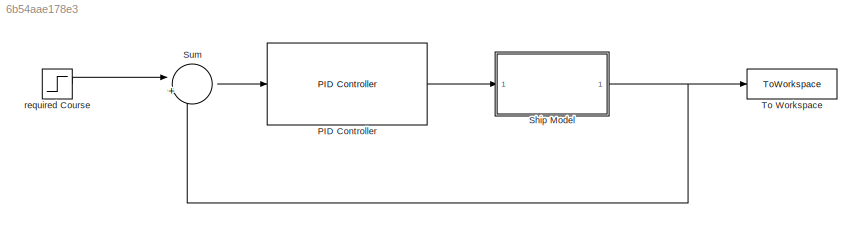
MODEL slx_6b54aae178e3
KIND model
CONFIG AbsTol = auto
CONFIG EnableMultiTasking = off
CONFIG FixedStep = auto
CONFIG MaxStep = auto
CONFIG MinStep = auto
CONFIG RelTol = 1e-3
CONFIG SampleTimeConstraint = Unconstrained
CONFIG SolverName = VariableStepAuto
CONFIG StartTime = 0.0
CONFIG StopTime = 2000
BLOCK [Reference] PID Controller  REF=pid_lib/PID Controller
  Ports = [1, 1]
  SourceBlock = pid_lib/PID Controller
  SourceProductBaseCode = SL
  SourceType = PID 1dof
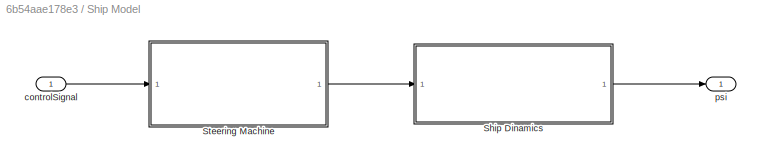
BLOCK [SubSystem] Ship Model
  Ports = [1, 1]
  RequestExecContextInheritance = off
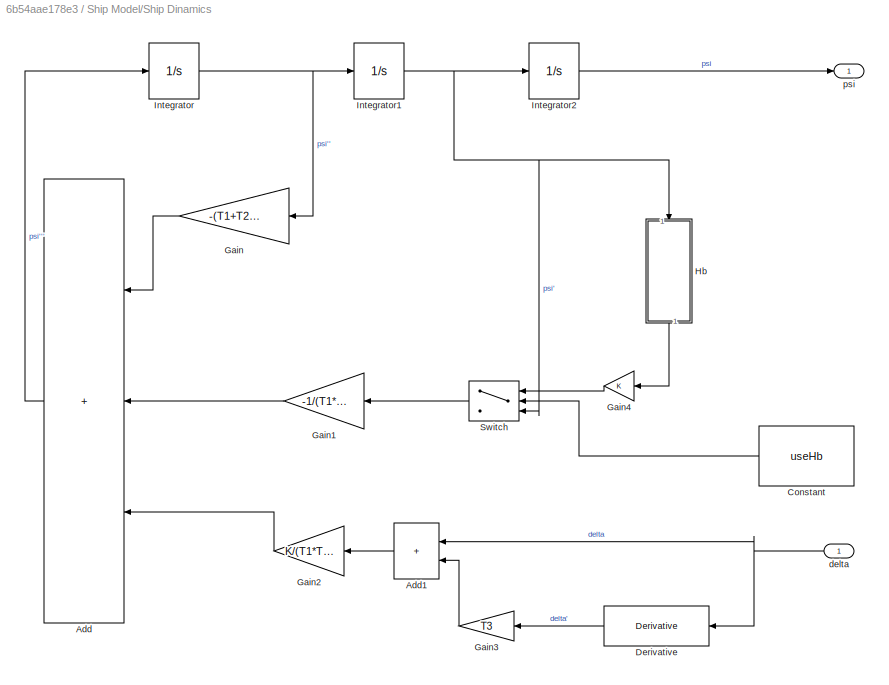
BLOCK [SubSystem] Ship Model/Ship Dinamics
  Ports = [1, 1]
  RequestExecContextInheritance = off
BLOCK [Sum] Ship Model/Ship Dinamics/Add
  IconShape = rectangular
  Inputs = +++
  NameLocation = top
  Ports = [3, 1]
BLOCK [Sum] Ship Model/Ship Dinamics/Add1
  IconShape = rectangular
  NameLocation = top
  Ports = [2, 1]
BLOCK [Constant] Ship Model/Ship Dinamics/Constant
  NameLocation = top
  Value = useHb
BLOCK [Derivative] Ship Model/Ship Dinamics/Derivative
  NameLocation = top
BLOCK [Gain] Ship Model/Ship Dinamics/Gain
  Gain = -(T1+T2)/(T1*T2)
  NameLocation = top
BLOCK [Gain] Ship Model/Ship Dinamics/Gain1
  Gain = -1/(T1*T2)
  NameLocation = top
BLOCK [Gain] Ship Model/Ship Dinamics/Gain2
  Gain = K/(T1*T2)
  NameLocation = top
BLOCK [Gain] Ship Model/Ship Dinamics/Gain3
  Gain = T3
  NameLocation = top
BLOCK [Gain] Ship Model/Ship Dinamics/Gain4
  Gain = K
  NameLocation = top
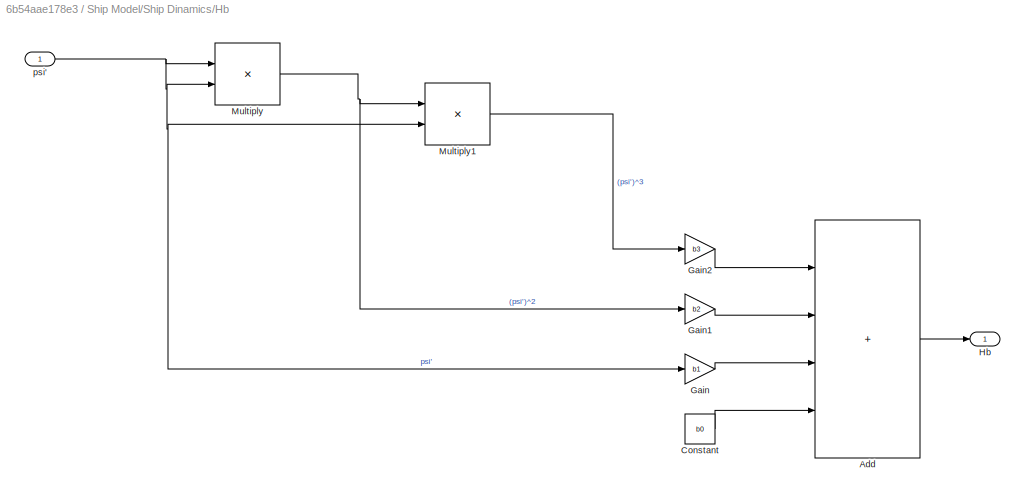
BLOCK [SubSystem] Ship Model/Ship Dinamics/Hb
  NameLocation = left
  Ports = [1, 1]
  RequestExecContextInheritance = off
BLOCK [Sum] Ship Model/Ship Dinamics/Hb/Add
  IconShape = rectangular
  Inputs = ++++
  Ports = [4, 1]
BLOCK [Constant] Ship Model/Ship Dinamics/Hb/Constant
  Value = b0
BLOCK [Gain] Ship Model/Ship Dinamics/Hb/Gain
  Gain = b1
BLOCK [Gain] Ship Model/Ship Dinamics/Hb/Gain1
  Gain = b2
BLOCK [Gain] Ship Model/Ship Dinamics/Hb/Gain2
  Gain = b3
BLOCK [Outport] Ship Model/Ship Dinamics/Hb/Hb
BLOCK [Product] Ship Model/Ship Dinamics/Hb/Multiply
  Inputs = **
  Ports = [2, 1]
BLOCK [Product] Ship Model/Ship Dinamics/Hb/Multiply1
  Inputs = **
  Ports = [2, 1]
BLOCK [Inport] Ship Model/Ship Dinamics/Hb/psi'
BLOCK [Integrator] Ship Model/Ship Dinamics/Integrator
  Ports = [1, 1]
BLOCK [Integrator] Ship Model/Ship Dinamics/Integrator1
  Ports = [1, 1]
BLOCK [Integrator] Ship Model/Ship Dinamics/Integrator2
  Ports = [1, 1]
BLOCK [Switch] Ship Model/Ship Dinamics/Switch
  Criteria = u2 > Threshold
  InputSameDT = off
  NameLocation = top
  SaturateOnIntegerOverflow = off
BLOCK [Inport] Ship Model/Ship Dinamics/delta
BLOCK [Outport] Ship Model/Ship Dinamics/psi
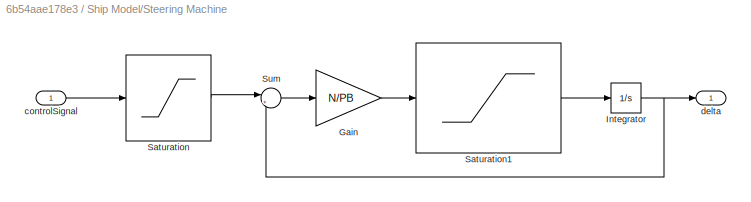
BLOCK [SubSystem] Ship Model/Steering Machine
  Ports = [1, 1]
  RequestExecContextInheritance = off
BLOCK [Gain] Ship Model/Steering Machine/Gain
  Gain = N/PB
BLOCK [Integrator] Ship Model/Steering Machine/Integrator
  Ports = [1, 1]
BLOCK [Saturate] Ship Model/Steering Machine/Saturation
  LowerLimit = -deltaMax
  UpperLimit = deltaMax
BLOCK [Saturate] Ship Model/Steering Machine/Saturation1
  LowerLimit = -N
  UpperLimit = N
BLOCK [Sum] Ship Model/Steering Machine/Sum
  Inputs = |+-
  Ports = [2, 1]
BLOCK [Inport] Ship Model/Steering Machine/controlSignal
BLOCK [Outport] Ship Model/Steering Machine/delta
BLOCK [Inport] Ship Model/controlSignal
BLOCK [Outport] Ship Model/psi
BLOCK [Sum] Sum
  Inputs = |+-
  Ports = [2, 1]
BLOCK [ToWorkspace] To Workspace
  FixptAsFi = on
  MaxDataPoints = inf
  Ports = [1]
  SampleTime = -1
  Save2DSignal = 2-D array (concatenate along first dimension)
  VariableName = psi
BLOCK [Step] required Course
  After = requiredPsi
  SampleTime = 0
  Time = stepTime
LINE PID Controller:1 -> Ship Model:1
LINE Ship Model/Ship Dinamics/Add1:1 -> Ship Model/Ship Dinamics/Gain2:1
LINE Ship Model/Ship Dinamics/Add:1 -> Ship Model/Ship Dinamics/Integrator:1
LINE Ship Model/Ship Dinamics/Constant:1 -> Ship Model/Ship Dinamics/Switch:2
LINE Ship Model/Ship Dinamics/Derivative:1 -> Ship Model/Ship Dinamics/Gain3:1
LINE Ship Model/Ship Dinamics/Gain1:1 -> Ship Model/Ship Dinamics/Add:2
LINE Ship Model/Ship Dinamics/Gain2:1 -> Ship Model/Ship Dinamics/Add:3
LINE Ship Model/Ship Dinamics/Gain3:1 -> Ship Model/Ship Dinamics/Add1:2
LINE Ship Model/Ship Dinamics/Gain4:1 -> Ship Model/Ship Dinamics/Switch:1
LINE Ship Model/Ship Dinamics/Gain:1 -> Ship Model/Ship Dinamics/Add:1
LINE Ship Model/Ship Dinamics/Hb/Add:1 -> Ship Model/Ship Dinamics/Hb/Hb:1
LINE Ship Model/Ship Dinamics/Hb/Constant:1 -> Ship Model/Ship Dinamics/Hb/Add:4
LINE Ship Model/Ship Dinamics/Hb/Gain1:1 -> Ship Model/Ship Dinamics/Hb/Add:2
LINE Ship Model/Ship Dinamics/Hb/Gain2:1 -> Ship Model/Ship Dinamics/Hb/Add:1
LINE Ship Model/Ship Dinamics/Hb/Gain:1 -> Ship Model/Ship Dinamics/Hb/Add:3
LINE Ship Model/Ship Dinamics/Hb/Multiply1:1 -> Ship Model/Ship Dinamics/Hb/Gain2:1
NET Ship Model/Ship Dinamics/Hb/Multiply:1 -> Ship Model/Ship Dinamics/Hb/Gain1:1, Ship Model/Ship Dinamics/Hb/Multiply1:1
NET Ship Model/Ship Dinamics/Hb/psi':1 -> Ship Model/Ship Dinamics/Hb/Gain:1, Ship Model/Ship Dinamics/Hb/Multiply1:2, Ship Model/Ship Dinamics/Hb/Multiply:1, Ship Model/Ship Dinamics/Hb/Multiply:2
LINE Ship Model/Ship Dinamics/Hb:1 -> Ship Model/Ship Dinamics/Gain4:1
NET Ship Model/Ship Dinamics/Integrator1:1 -> Ship Model/Ship Dinamics/Hb:1, Ship Model/Ship Dinamics/Integrator2:1, Ship Model/Ship Dinamics/Switch:3
LINE Ship Model/Ship Dinamics/Integrator2:1 -> Ship Model/Ship Dinamics/psi:1
NET Ship Model/Ship Dinamics/Integrator:1 -> Ship Model/Ship Dinamics/Gain:1, Ship Model/Ship Dinamics/Integrator1:1
LINE Ship Model/Ship Dinamics/Switch:1 -> Ship Model/Ship Dinamics/Gain1:1
NET Ship Model/Ship Dinamics/delta:1 -> Ship Model/Ship Dinamics/Add1:1, Ship Model/Ship Dinamics/Derivative:1
LINE Ship Model/Ship Dinamics:1 -> Ship Model/psi:1
LINE Ship Model/Steering Machine/Gain:1 -> Ship Model/Steering Machine/Saturation1:1
NET Ship Model/Steering Machine/Integrator:1 -> Ship Model/Steering Machine/Sum:2, Ship Model/Steering Machine/delta:1
LINE Ship Model/Steering Machine/Saturation1:1 -> Ship Model/Steering Machine/Integrator:1
LINE Ship Model/Steering Machine/Saturation:1 -> Ship Model/Steering Machine/Sum:1
LINE Ship Model/Steering Machine/Sum:1 -> Ship Model/Steering Machine/Gain:1
LINE Ship Model/Steering Machine/controlSignal:1 -> Ship Model/Steering Machine/Saturation:1
LINE Ship Model/Steering Machine:1 -> Ship Model/Ship Dinamics:1
LINE Ship Model/controlSignal:1 -> Ship Model/Steering Machine:1
NET Ship Model:1 -> Sum:2, To Workspace:1
LINE Sum:1 -> PID Controller:1
LINE required Course:1 -> Sum:1
note: NET lines group one-source signal fan-out (src -> all destinations, sorted); 1:1 wires keep LINE
